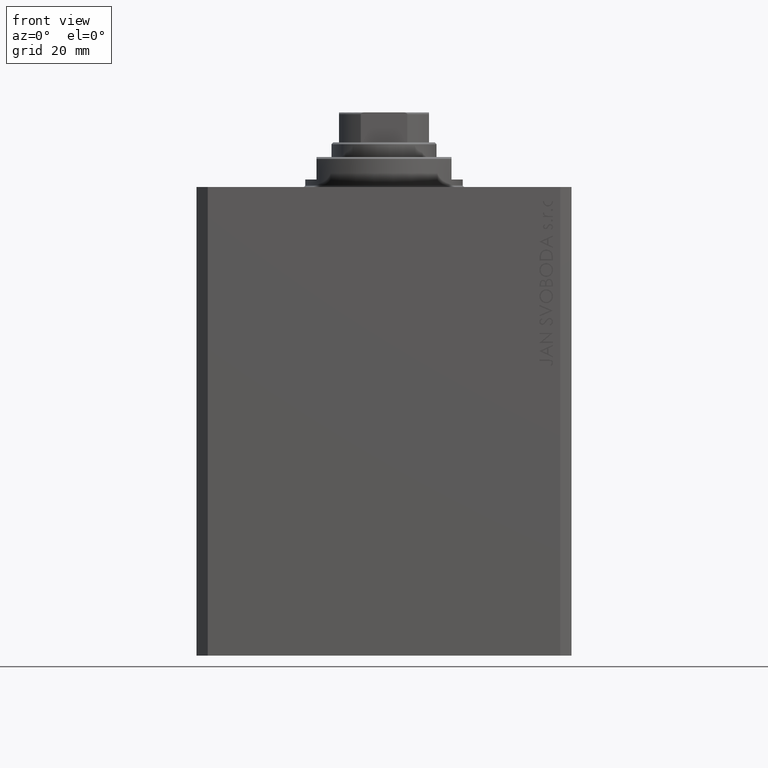
[diagram: clean part render]
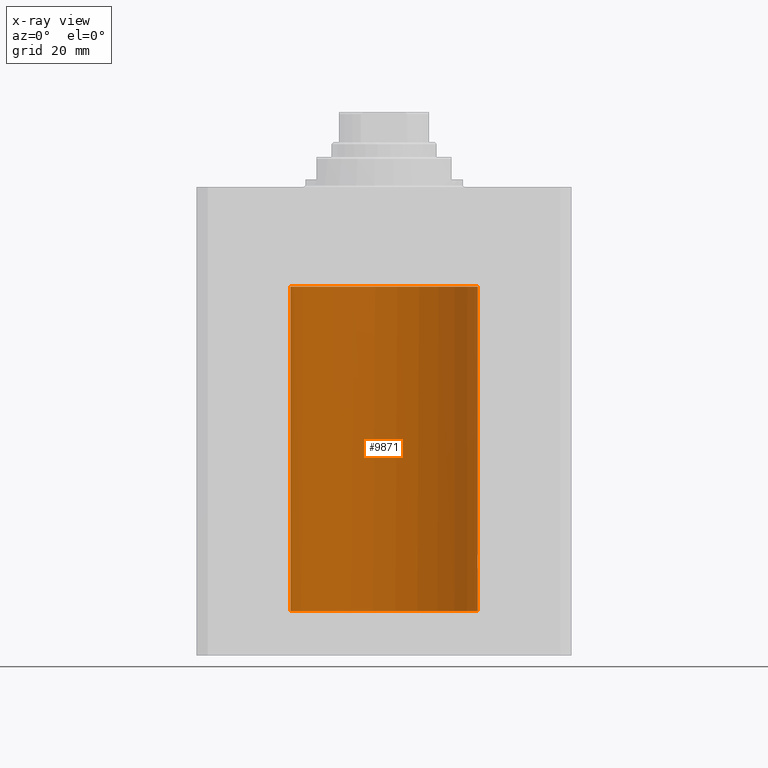
[diagram: x-ray — body ghosted, one internal face saturated and labeled with its STEP entity id]
A machine part, front view, then the same camera in x-ray: the body is ghosted and one INTERNAL B-rep face — a face not visible from any outside direction — is saturated and labeled: STEP entity #9871.
In plain terms, the highlighted cylindrical surface (partial cylindrical patch) has radius 25 mm, axis along (0, 0, 1).
Its self-contained STEP definition (entity closure, byte-faithful):
#230 = CARTESIAN_POINT ( 'NONE',  ( 0.000000000000000000, 0.000000000000000000, -113.0999999999999943 ) ) ;
#409 = DIRECTION ( 'NONE',  ( -0.000000000000000000, -0.000000000000000000, 1.000000000000000000 ) ) ;
#525 = DIRECTION ( 'NONE',  ( 1.000000000000000000, 0.000000000000000000, 0.000000000000000000 ) ) ;
#757 = CARTESIAN_POINT ( 'NONE',  ( 0.000000000000000000, 0.000000000000000000, -113.0999999999999943 ) ) ;
#1253 = CIRCLE ( 'NONE', #18025, 25.00000000000000000 ) ;
#2194 = VERTEX_POINT ( 'NONE', #41120 ) ;
#2651 = CARTESIAN_POINT ( 'NONE',  ( 24.98457651818866765, 0.8863534138924961114, -98.20234421602245334 ) ) ;
#3243 = EDGE_CURVE ( 'NONE', #12054, #44083, #20664, .T. ) ;
#3349 = CARTESIAN_POINT ( 'NONE',  ( 24.99493190796009046, 0.5194315891213243663, -98.06421314474680173 ) ) ;
#3578 = VECTOR ( 'NONE', #21868, 1000.000000000000000 ) ;
#4846 = CARTESIAN_POINT ( 'NONE',  ( -24.97118339206214088, 1.199999999999987521, -26.59999999999999787 ) ) ;
#5808 = VERTEX_POINT ( 'NONE', #38621 ) ;
#6237 = CARTESIAN_POINT ( 'NONE',  ( 24.91987158875419794, 2.000000000000375255, -100.0000000000000000 ) ) ;
#6940 = CARTESIAN_POINT ( 'NONE',  ( 25.00000000000000000, -1.072061970195355044E-23, -98.00000000000000000 ) ) ;
#7277 = B_SPLINE_CURVE_WITH_KNOTS ( 'NONE', 3,
 ( #6237, #9811, #43269, #21288, #17474, #27984, #10518, #35146, #25110, #10743, #10279, #24875, #2651, #17933, #3349, #39443, #39204, #6940 ),
 .UNSPECIFIED., .F., .F.,
 ( 4, 2, 2, 2, 2, 2, 2, 2, 4 ),
 ( 0.003128423524421375217, 0.003519296810509137119, 0.003910170096596899021, 0.004301043382684660923, 0.004691916668772423693, 0.005082789954860184728, 0.005473663240947946630, 0.005864536527035708532, 0.006255409813123470435 ),
 .UNSPECIFIED. ) ;
#7511 = CARTESIAN_POINT ( 'NONE',  ( -25.00000000000000000, 3.061616997868383043E-15, -113.0999999999999943 ) ) ;
#7556 = CARTESIAN_POINT ( 'NONE',  ( 25.00000000000000000, 0.000000000000000000, -113.0999999999999943 ) ) ;
#8110 = EDGE_CURVE ( 'NONE', #25502, #2194, #45327, .T. ) ;
#8530 = CARTESIAN_POINT ( 'NONE',  ( 24.96516502151963124, 1.322522485723470531, -101.5059723511098184 ) ) ;
#8759 = CARTESIAN_POINT ( 'NONE',  ( 25.00000000000000355, 0.1322318523520167877, -102.0000000000000142 ) ) ;
#9559 = ORIENTED_EDGE ( 'NONE', *, *, #43818, .T. ) ;
#9577 = DIRECTION ( 'NONE',  ( 0.000000000000000000, 0.000000000000000000, 1.000000000000000000 ) ) ;
#9767 = ORIENTED_EDGE ( 'NONE', *, *, #40919, .F. ) ;
#9811 = CARTESIAN_POINT ( 'NONE',  ( 24.91987158875419439, 2.000000000000375699, -99.86952236750346401 ) ) ;
#9813 = CARTESIAN_POINT ( 'NONE',  ( 0.000000000000000000, 0.000000000000000000, -26.60000000000000142 ) ) ;
#9871 = ADVANCED_FACE ( 'NONE', ( #32723 ), #46809, .F. ) ;
#10279 = CARTESIAN_POINT ( 'NONE',  ( 24.97045842037802998, 1.219816859706691625, -98.40971381657300299 ) ) ;
#10518 = CARTESIAN_POINT ( 'NONE',  ( 24.93982559358191153, 1.735040297787688646, -98.99670286233153149 ) ) ;
#10743 = CARTESIAN_POINT ( 'NONE',  ( 24.96525661602875701, 1.320872503675244003, -98.49244428507738292 ) ) ;
#11551 = VERTEX_POINT ( 'NONE', #24375 ) ;
#12054 = VERTEX_POINT ( 'NONE', #45801 ) ;
#12338 = CARTESIAN_POINT ( 'NONE',  ( 24.99496001540385848, 0.5180074392840622322, -101.9361479946135205 ) ) ;
#13534 = DIRECTION ( 'NONE',  ( -0.000000000000000000, -0.000000000000000000, 1.000000000000000000 ) ) ;
#13770 = EDGE_CURVE ( 'NONE', #5808, #11551, #1253, .T. ) ;
#13771 = CARTESIAN_POINT ( 'NONE',  ( 25.00000000000000000, 0.000000000000000000, -113.0999999999999943 ) ) ;
#14097 = ORIENTED_EDGE ( 'NONE', *, *, #16238, .T. ) ;
#15236 = CARTESIAN_POINT ( 'NONE',  ( 24.91987158875419439, 2.000000000000375699, -100.2610752061100072 ) ) ;
#16238 = EDGE_CURVE ( 'NONE', #2194, #40681, #7277, .T. ) ;
#16494 = CARTESIAN_POINT ( 'NONE',  ( 25.00000000000000000, 3.613683980139323145E-15, -102.0000000000000142 ) ) ;
#17127 = ORIENTED_EDGE ( 'NONE', *, *, #29529, .T. ) ;
#17474 = CARTESIAN_POINT ( 'NONE',  ( 24.92790171662583276, 1.897957730269075105, -99.35585098575664631 ) ) ;
#17662 = CARTESIAN_POINT ( 'NONE',  ( 25.00000000000000000, 0.000000000000000000, -26.60000000000000142 ) ) ;
#17933 = CARTESIAN_POINT ( 'NONE',  ( 24.99199530066696795, 0.6440939830361788188, -98.10201906410962636 ) ) ;
#18025 = AXIS2_PLACEMENT_3D ( 'NONE', #757, #43756, #525 ) ;
#18094 = LINE ( 'NONE', #7556, #45622 ) ;
#18491 = CARTESIAN_POINT ( 'NONE',  ( -24.99718407171789991, 0.4276024655076519632, -26.96566959702169086 ) ) ;
#18607 = DIRECTION ( 'NONE',  ( -0.000000000000000000, -0.000000000000000000, 1.000000000000000000 ) ) ;
#19269 = CARTESIAN_POINT ( 'NONE',  ( 25.00000000000000000, -1.072061970195355044E-23, -98.00000000000000000 ) ) ;
#20580 = DIRECTION ( 'NONE',  ( 1.000000000000000000, 0.000000000000000000, 0.000000000000000000 ) ) ;
#20664 = B_SPLINE_CURVE_WITH_KNOTS ( 'NONE', 3,
 ( #4846, #23027, #30191, #18491, #37588, #44050 ),
 .UNSPECIFIED., .F., .F.,
 ( 4, 2, 4 ),
 ( 0.000000000000000000, 0.0006408866495840856480, 0.001281773299168171296 ),
 .UNSPECIFIED. ) ;
#21272 = ORIENTED_EDGE ( 'NONE', *, *, #13770, .F. ) ;
#21288 = CARTESIAN_POINT ( 'NONE',  ( 24.92495585240437350, 1.935777409849491759, -99.48051441220836466 ) ) ;
#21868 = DIRECTION ( 'NONE',  ( -0.000000000000000000, -0.000000000000000000, 1.000000000000000000 ) ) ;
#21995 = EDGE_CURVE ( 'NONE', #40681, #41874, #46499, .T. ) ;
#23027 = CARTESIAN_POINT ( 'NONE',  ( -24.97950800354324485, 1.026770500031154887, -26.72992212497661768 ) ) ;
#23119 = CARTESIAN_POINT ( 'NONE',  ( 24.94948532700468391, 1.599156973339999066, -101.2291341524913690 ) ) ;
#23344 = CARTESIAN_POINT ( 'NONE',  ( 24.99895171050671294, 0.2622427397369110347, -101.9870152263268182 ) ) ;
#24375 = CARTESIAN_POINT ( 'NONE',  ( -25.00000000000000000, 3.061616997868383043E-15, -113.0999999999999943 ) ) ;
#24743 = AXIS2_PLACEMENT_3D ( 'NONE', #9813, #9577, #20580 ) ;
#24850 = DIRECTION ( 'NONE',  ( 1.000000000000000000, 0.000000000000000000, 0.000000000000000000 ) ) ;
#24875 = CARTESIAN_POINT ( 'NONE',  ( 24.98009620012517829, 1.003265033550135854, -98.26494305889434600 ) ) ;
#25110 = CARTESIAN_POINT ( 'NONE',  ( 24.95467834240023919, 1.507571193169164436, -98.67914516237102873 ) ) ;
#25502 = VERTEX_POINT ( 'NONE', #16494 ) ;
#25990 = ORIENTED_EDGE ( 'NONE', *, *, #8110, .T. ) ;
#26705 = CARTESIAN_POINT ( 'NONE',  ( 24.99196954445030627, 0.6450912151121352966, -101.8976436764501869 ) ) ;
#26935 = CARTESIAN_POINT ( 'NONE',  ( 24.98454161695537223, 0.8873356620645981296, -101.7971726743456742 ) ) ;
#27764 = ORIENTED_EDGE ( 'NONE', *, *, #21995, .T. ) ;
#27984 = CARTESIAN_POINT ( 'NONE',  ( 24.93533359819881667, 1.797683477752171743, -99.11371245509397454 ) ) ;
#28560 = CIRCLE ( 'NONE', #24743, 25.00000000000000000 ) ;
#29529 = EDGE_CURVE ( 'NONE', #41874, #12054, #28560, .T. ) ;
#29874 = VECTOR ( 'NONE', #13534, 1000.000000000000000 ) ;
#30191 = CARTESIAN_POINT ( 'NONE',  ( -24.98680550328683125, 0.8376193197215402453, -26.82896000732461061 ) ) ;
#30284 = CARTESIAN_POINT ( 'NONE',  ( 25.00000000000000000, 3.613683980139323145E-15, -102.0000000000000142 ) ) ;
#31738 = AXIS2_PLACEMENT_3D ( 'NONE', #230, #18607, #24850 ) ;
#31983 = EDGE_LOOP ( 'NONE', ( #9767, #21272, #9559, #25990, #14097, #27764, #17127, #39616 ) ) ;
#32723 = FACE_OUTER_BOUND ( 'NONE', #31983, .T. ) ;
#33631 = CARTESIAN_POINT ( 'NONE',  ( 24.93900639076503722, 1.748128916801924504, -101.0059564568424264 ) ) ;
#35146 = CARTESIAN_POINT ( 'NONE',  ( 24.94947734723934829, 1.590234439578154468, -98.78011295253192259 ) ) ;
#37588 = CARTESIAN_POINT ( 'NONE',  ( -25.00000000000000355, 0.2156805908219409651, -26.99999999999999645 ) ) ;
#37678 = CARTESIAN_POINT ( 'NONE',  ( 24.92422785753204906, 1.947526681255389525, -100.5244453533215392 ) ) ;
#37912 = CARTESIAN_POINT ( 'NONE',  ( 24.91987158875419794, 2.000000000000375255, -100.0000000000000000 ) ) ;
#38621 = CARTESIAN_POINT ( 'NONE',  ( 25.00000000000000000, 0.000000000000000000, -113.0999999999999943 ) ) ;
#39204 = CARTESIAN_POINT ( 'NONE',  ( 25.00000000000000000, 0.1305261351234896783, -97.99999999999998579 ) ) ;
#39443 = CARTESIAN_POINT ( 'NONE',  ( 24.99894413130754600, 0.2631018416927612402, -98.01307842488789390 ) ) ;
#39616 = ORIENTED_EDGE ( 'NONE', *, *, #3243, .T. ) ;
#40247 = LINE ( 'NONE', #7511, #3578 ) ;
#40681 = VERTEX_POINT ( 'NONE', #19269 ) ;
#40919 = EDGE_CURVE ( 'NONE', #11551, #44083, #40247, .T. ) ;
#41120 = CARTESIAN_POINT ( 'NONE',  ( 24.91987158875419794, 2.000000000000375255, -100.0000000000000000 ) ) ;
#41274 = CARTESIAN_POINT ( 'NONE',  ( 24.98014008684978648, 1.002218476749560327, -101.7356982428406553 ) ) ;
#41504 = CARTESIAN_POINT ( 'NONE',  ( 24.97046928552373046, 1.219632852334577633, -101.5904672177837540 ) ) ;
#41874 = VERTEX_POINT ( 'NONE', #17662 ) ;
#42189 = CARTESIAN_POINT ( 'NONE',  ( -25.00000000000000000, 3.060241555953638093E-15, -26.99999999999999645 ) ) ;
#43269 = CARTESIAN_POINT ( 'NONE',  ( 24.92092960952687264, 1.986938806757485132, -99.73699118910590755 ) ) ;
#43756 = DIRECTION ( 'NONE',  ( 0.000000000000000000, 0.000000000000000000, 1.000000000000000000 ) ) ;
#43818 = EDGE_CURVE ( 'NONE', #5808, #25502, #18094, .T. ) ;
#44050 = CARTESIAN_POINT ( 'NONE',  ( -25.00000000000000000, 3.060241555953638093E-15, -26.99999999999999645 ) ) ;
#44083 = VERTEX_POINT ( 'NONE', #42189 ) ;
#45327 = B_SPLINE_CURVE_WITH_KNOTS ( 'NONE', 3,
 ( #30284, #8759, #23344, #12338, #26705, #26935, #41274, #41504, #8530, #23119, #33631, #37678, #15236, #37912 ),
 .UNSPECIFIED., .F., .F.,
 ( 4, 2, 2, 2, 2, 2, 4 ),
 ( 3.511612687242254074E-18, 0.0003910529405526748294, 0.0007821058811053461894, 0.001173158821658017766, 0.001564211762210689343, 0.002346317643316032063, 0.003128423524421375217 ),
 .UNSPECIFIED. ) ;
#45622 = VECTOR ( 'NONE', #409, 1000.000000000000000 ) ;
#45801 = CARTESIAN_POINT ( 'NONE',  ( -24.97118339206214088, 1.199999999999987521, -26.59999999999999787 ) ) ;
#46499 = LINE ( 'NONE', #13771, #29874 ) ;
#46809 = CYLINDRICAL_SURFACE ( 'NONE', #31738, 25.00000000000000000 ) ;